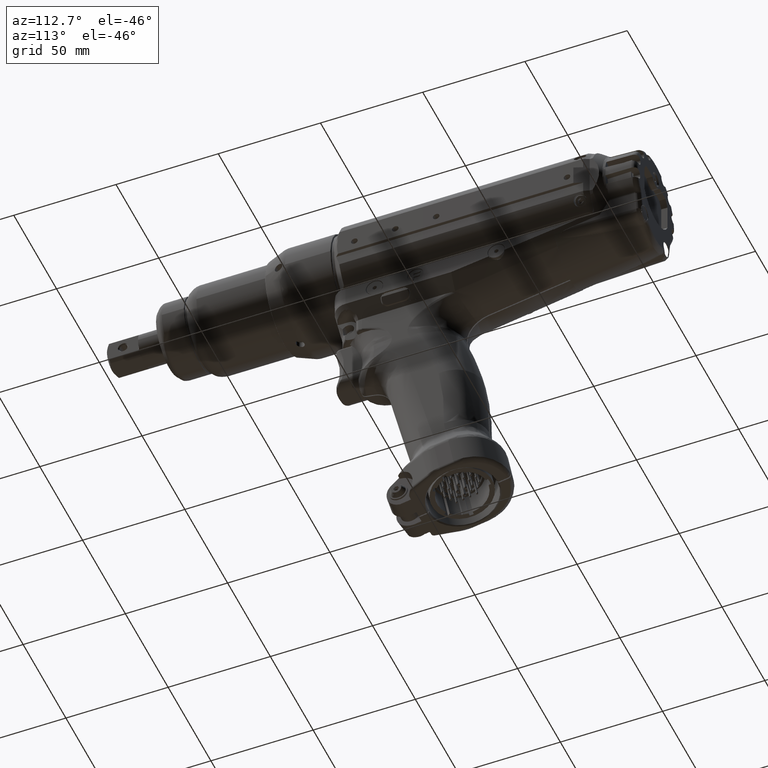
[diagram: clean part render]
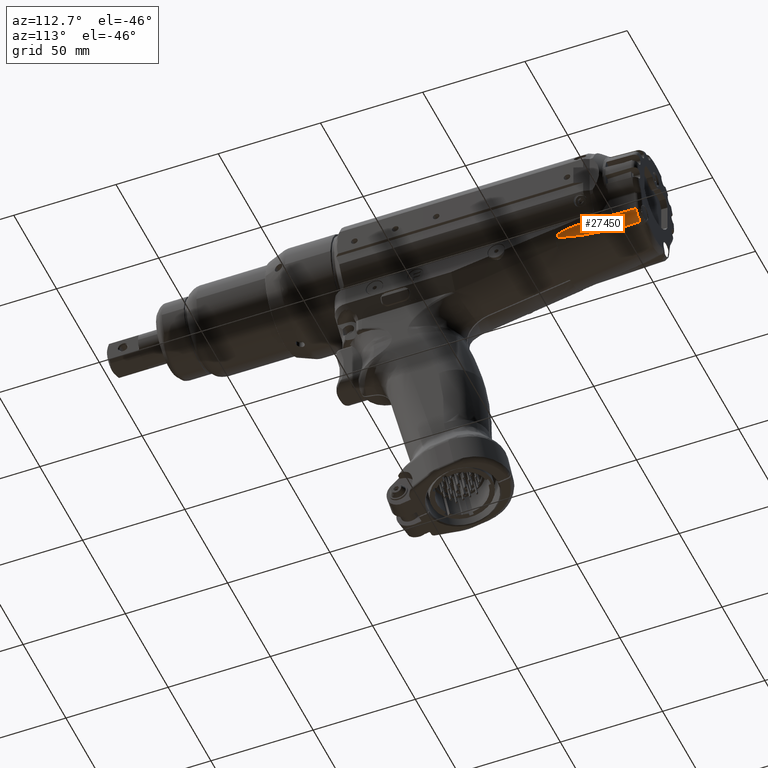
[diagram: same view with one face highlighted and labeled with its STEP entity id]
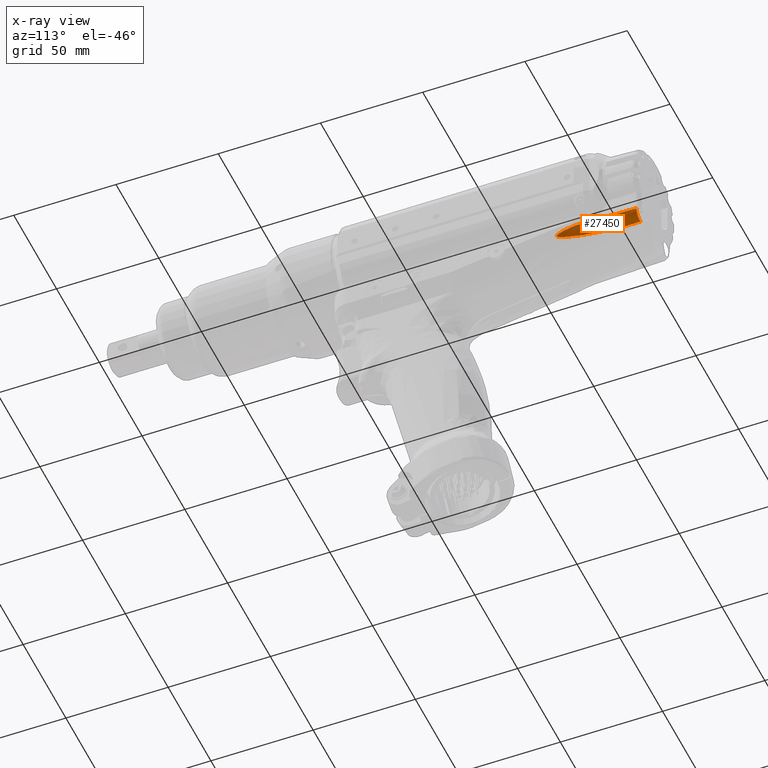
[diagram: x-ray of the same camera — body ghosted, the highlighted face saturated]
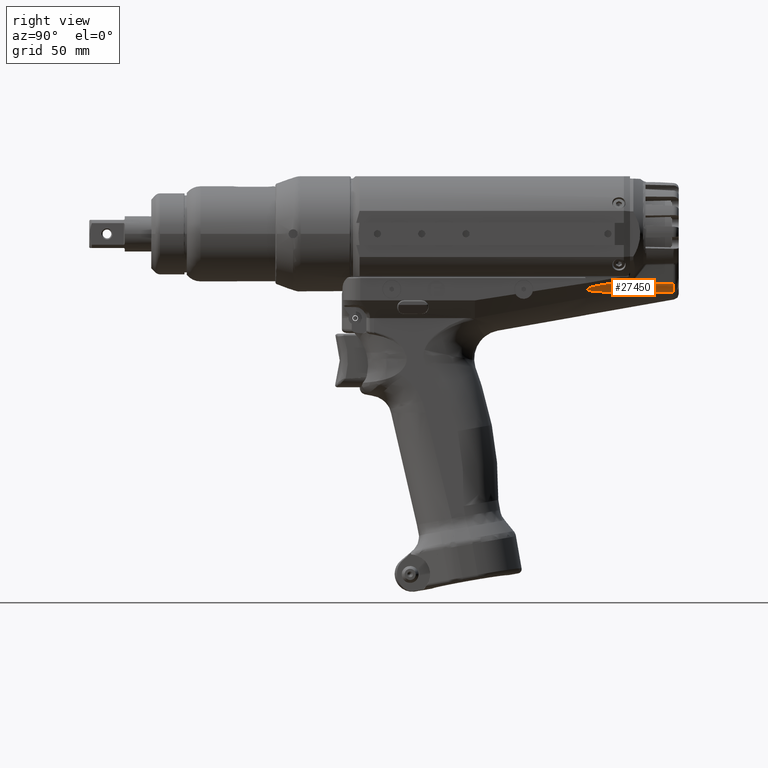
[diagram: same view with one face highlighted and labeled with its STEP entity id]
A machine part, auxiliary view. The second image highlights one B-rep face of the part: STEP entity #27450.
The next image is the same camera in x-ray: the body ghosted, the highlighted face saturated — about 0% of this face is hidden behind the body in this view.
A second angle (right view) of the same face is appended — the face is thin or edge-on in the first view.
In plain terms, the highlighted conical surface has half-angle 1.8 deg.
Its self-contained STEP definition (entity closure, byte-faithful):
#120=CONICAL_SURFACE('',#29197,4.7,0.0314159265358979);
#1236=LINE('',#42113,#2963);
#1237=LINE('',#42114,#2964);
#2963=VECTOR('',#32152,10.);
#2964=VECTOR('',#32153,10.);
#5334=FACE_OUTER_BOUND('',#6923,.T.);
#6923=EDGE_LOOP('',(#18796,#18797,#18798,#18799,#18800));
#8667=CIRCLE('',#29193,4.77609785792985);
#9862=B_SPLINE_CURVE_WITH_KNOTS('',3,(#42101,#42102,#42103,#42104,#42105,
#42106,#42107),.UNSPECIFIED.,.F.,.F.,(4,1,1,1,4),(-0.676512028067766,-0.31063408332342,
-0.127695110951247,0.238182833793099,0.604060778537445),.UNSPECIFIED.);
#9863=B_SPLINE_CURVE_WITH_KNOTS('',3,(#42109,#42110,#42111,#42112),
 .UNSPECIFIED.,.F.,.F.,(4,4),(7.06195524768396E-16,1.77377044845374),
 .UNSPECIFIED.);
#11275=VERTEX_POINT('',#42090);
#11276=VERTEX_POINT('',#42091);
#11279=VERTEX_POINT('',#42099);
#11280=VERTEX_POINT('',#42100);
#11281=VERTEX_POINT('',#42108);
#14247=EDGE_CURVE('',#11275,#11276,#8667,.T.);
#14251=EDGE_CURVE('',#11279,#11280,#9862,.T.);
#14252=EDGE_CURVE('',#11281,#11279,#9863,.T.);
#14253=EDGE_CURVE('',#11276,#11281,#1236,.T.);
#14254=EDGE_CURVE('',#11275,#11280,#1237,.T.);
#18796=ORIENTED_EDGE('',*,*,#14251,.F.);
#18797=ORIENTED_EDGE('',*,*,#14252,.F.);
#18798=ORIENTED_EDGE('',*,*,#14253,.F.);
#18799=ORIENTED_EDGE('',*,*,#14247,.F.);
#18800=ORIENTED_EDGE('',*,*,#14254,.T.);
#27450=ADVANCED_FACE('',(#5334),#120,.T.);
#29193=AXIS2_PLACEMENT_3D('',#42092,#32142,#32143);
#29197=AXIS2_PLACEMENT_3D('',#42098,#32150,#32151);
#32142=DIRECTION('center_axis',(2.85639748406789E-15,1.,2.35171747994592E-17));
#32143=DIRECTION('ref_axis',(0.64278760968655,-1.81804171002569E-15,-0.766044443118969));
#32150=DIRECTION('center_axis',(-2.8563974840679E-15,-1.,4.69915280589499E-16));
#32151=DIRECTION('ref_axis',(0.984807753012206,-2.73660170597228E-15,0.173648177666944));
#32152=DIRECTION('',(-2.43236169365517E-15,-0.999506560365732,-0.0314107590781278));
#32153=DIRECTION('',(0.0309335590681365,-0.999506560365732,-0.00545442107305106));
#42090=CARTESIAN_POINT('',(17.2035381996345,157.078526897695,-22.3293606893881));
#42091=CARTESIAN_POINT('',(12.5000000000003,157.078526897695,-26.2760978579296));
#42092=CARTESIAN_POINT('Origin',(12.5000000000002,157.078526897695,-21.4999999999998));
#42098=CARTESIAN_POINT('Origin',(12.5000000000002,159.5,-21.4999999999998));
#42099=CARTESIAN_POINT('',(14.938512868972,129.863603643764,-26.5760107184519));
#42100=CARTESIAN_POINT('',(18.1156755201952,127.606094260798,-22.4901951091162));
#42101=CARTESIAN_POINT('Ctrl Pts',(14.938512868972,129.863603643764,-26.5760107184519));
#42102=CARTESIAN_POINT('Ctrl Pts',(15.4684196108188,125.880350167134,-26.4603180046205));
#42103=CARTESIAN_POINT('Ctrl Pts',(16.2227619222386,121.289451437412,-26.132311764197));
#42104=CARTESIAN_POINT('Ctrl Pts',(17.2415485538876,117.814151737348,-25.2602068219257));
#42105=CARTESIAN_POINT('Ctrl Pts',(17.9625322077665,118.702434002604,-24.1112088112788));
#42106=CARTESIAN_POINT('Ctrl Pts',(18.1357004707659,123.992409013574,-23.0306206330744));
#42107=CARTESIAN_POINT('Ctrl Pts',(18.1156755201948,127.606094260799,-22.4901951091181));
#42108=CARTESIAN_POINT('',(12.5000000000003,147.363216797501,-26.581413777832));
#42109=CARTESIAN_POINT('Ctrl Pts',(12.5000000000003,147.363216797501,-26.581413777832));
#42110=CARTESIAN_POINT('Ctrl Pts',(13.2961377115958,141.530793705542,-26.7647050575972));
#42111=CARTESIAN_POINT('Ctrl Pts',(14.1617173439216,135.702694244884,-26.7456058099806));
#42112=CARTESIAN_POINT('Ctrl Pts',(14.938512868972,129.863603643764,-26.5760107184519));
#42113=CARTESIAN_POINT('',(12.5000000000003,159.5,-26.1999999999998));
#42114=CARTESIAN_POINT('',(17.1285964391576,159.5,-22.3161464350343));